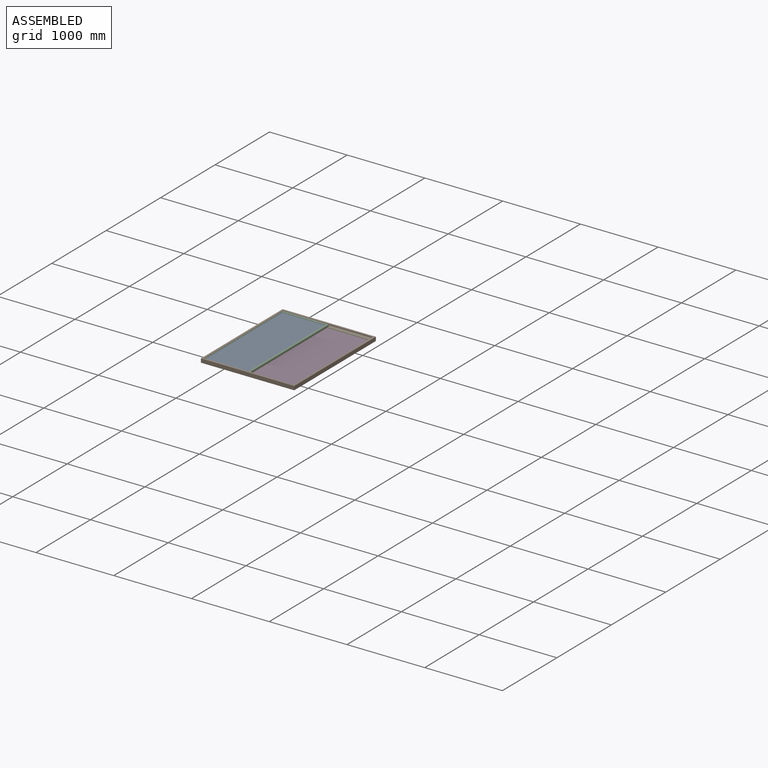
[diagram: assembled view]
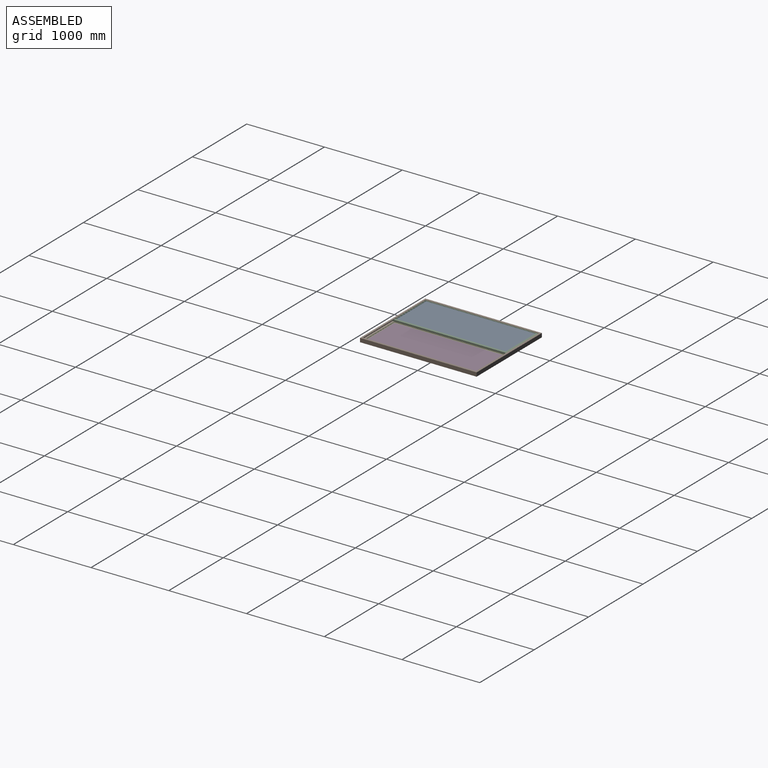
[diagram: assembled view, second angle]
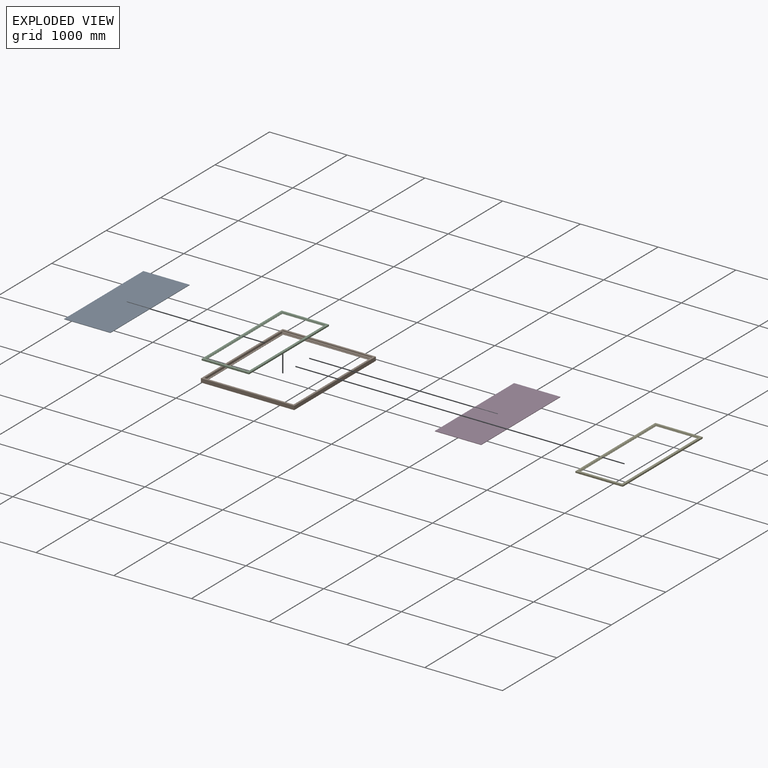
[diagram: exploded view]
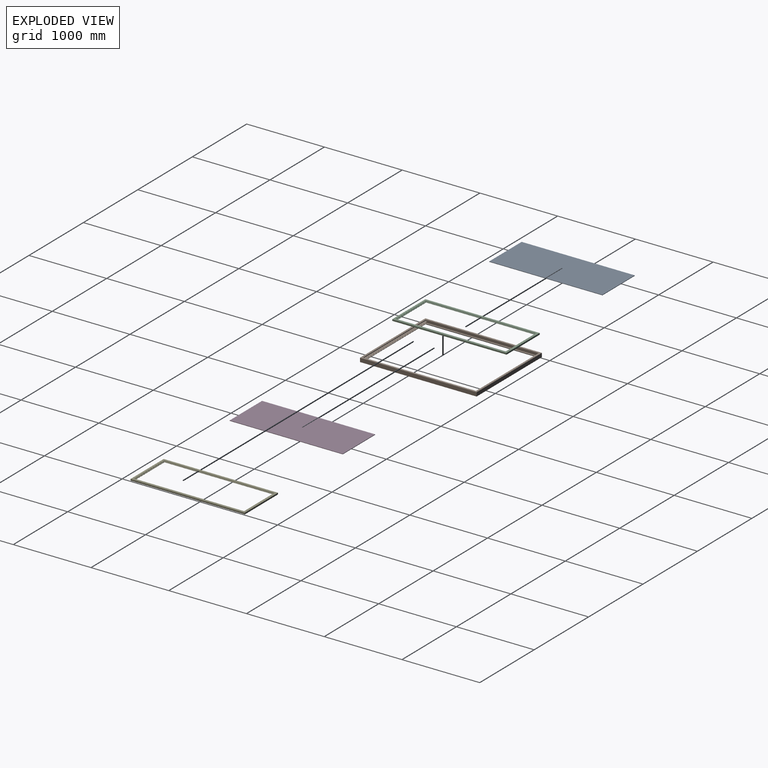
[diagram: exploded view, second angle]
ASSEMBLY  parts=5 mates=4
PART A: 6 faces, bbox 595x6x1455 mm
  f0: plane 1455x6mm, normal (-1,0,0), area 8730mm2, adj f1,f3,f4,f5
  f1: plane 595x6mm, normal (0,0,-1), area 3570mm2, adj f0,f2,f4,f5
  f2: plane 1455x6mm, normal (1,0,0), area 8730mm2, adj f1,f3,f4,f5
  f3: plane 595x6mm, normal (0,0,1), area 3570mm2, adj f0,f2,f4,f5
  f4: plane 1455x595mm, normal (0,-1,0), area 865725mm2, adj f0,f1,f2,f3
  f5: plane 1455x595mm, normal (0,1,0), area 865725mm2, adj f0,f1,f2,f3
PART B: 34 faces, bbox 1200x1500x50 mm
  f0: plane 1190x8.88mm, normal (0,1,0), area 10561.3mm2, adj f21,f22,f23,f33
  f1: plane 1190x19.25mm, normal (0,-1,0), area 22907.5mm2, adj f18,f21,f22,f25
  f2: plane 1190x20mm, normal (0,1,0), area 23800mm2, adj f17,f21,f22,f24
  f3: plane 1450x5mm, normal (-1,0,0), area 7250mm2, adj f9,f15,f16,f18
  f4: plane 1450x5mm, normal (-1,0,0), area 7250mm2, adj f6,f7,f8,f17
  f5: plane 1450x5mm, normal (1,0,0), area 7250mm2, adj f6,f7,f8,f17
  f6: plane 1150x5mm, normal (0,-1,0), area 5750mm2, adj f4,f5,f8,f17
  f7: plane 1150x5mm, normal (0,1,0), area 5750mm2, adj f4,f5,f8,f17
  f8: plane 1500x1200mm, normal (0,0,1), area 132500mm2, adj f4,f5,f6,f7,f10,f11,f12,f13
  f9: plane 1500x1200mm, normal (0,0,-1), area 132500mm2, adj f3,f10,f11,f12,f13,f14,f15,f16
  f10: plane 1500x50mm, normal (-1,0,0), area 75000mm2, adj f8,f9,f11,f13
  f11: plane 1200x50mm, normal (0,-1,0), area 60000mm2, adj f8,f9,f10,f12
  f12: plane 1500x50mm, normal (1,0,0), area 75000mm2, adj f8,f9,f11,f13
  f13: plane 1200x50mm, normal (0,1,0), area 60000mm2, adj f8,f9,f10,f12
  f14: plane 1450x5mm, normal (1,0,0), area 7250mm2, adj f9,f15,f16,f18
  f15: plane 1150x5mm, normal (0,1,0), area 5750mm2, adj f3,f9,f14,f18
  f16: plane 1150x5mm, normal (0,-1,0), area 5750mm2, adj f3,f9,f14,f18
  f17: plane 1490x1190mm, normal (0,0,-1), area 105600mm2, adj f2,f4,f5,f6,f7,f20,f21,f22
  f18: plane 1490x1190mm, normal (0,0,1), area 105600mm2, adj f1,f3,f14,f15,f16,f19,f21,f22
  f19: plane 1190x8.88mm, normal (0,1,0), area 10561.3mm2, adj f18,f21,f22,f32
  f20: plane 1190x19.25mm, normal (0,-1,0), area 22907.5mm2, adj f17,f21,f22,f26
  f21: plane 1490x40mm, normal (1,0,0), area 59548.2mm2, adj f0,f1,f2,f17,f18,f19,f20,f23
  f22: plane 1490x40mm, normal (-1,0,0), area 59548.2mm2, adj f0,f1,f2,f17,f18,f19,f20,f23
  f23: plane 1190x22.2mm, normal (0,0,-1), area 26418mm2, adj f0,f21,f22,f30
  f24: plane 1190x22.2mm, normal (0,0,1), area 26418mm2, adj f2,f21,f22,f29
  f25: plane 1190x22.2mm, normal (0,0,-1), area 26418mm2, adj f1,f21,f22,f27
  f26: plane 1190x22.2mm, normal (0,0,1), area 26418mm2, adj f20,f21,f22,f28
  f27: cylinder r=0.8mm len=1190mm, axis (-1,0,0), area 1435.9mm2, adj f21,f22,f25,f28
  f28: cylinder r=0.8mm len=1190mm, axis (1,0,0), area 1435.9mm2, adj f21,f22,f26,f27
  f29: cylinder r=0.8mm len=1190mm, axis (-1,0,0), area 962.2mm2, adj f21,f22,f24,f30
  f30: cylinder r=0.8mm len=1190mm, axis (1,0,0), area 962.2mm2, adj f21,f22,f23,f29
  f31: plane 1190x0.02mm, normal (0,1,0), area 19.9mm2, adj f21,f22,f32,f33
  f32: cylinder r=0.8mm len=1190mm, axis (-1,0,0), area 1129.5mm2, adj f19,f21,f22,f31
  f33: cylinder r=0.8mm len=1190mm, axis (-1,0,0), area 1129.5mm2, adj f0,f21,f22,f31
PART C: 24 faces, bbox 610x19x1470 mm
  f0: plane 1410x4.5mm, normal (-1,0,0), area 6345mm2, adj f3,f4,f14,f19
  f1: plane 1410x4.5mm, normal (1,0,0), area 6345mm2, adj f3,f4,f14,f19
  f2: plane 550x4.5mm, normal (0,0,-1), area 2475mm2, adj f5,f15,f17,f18
  f3: plane 550x4.5mm, normal (0,0,1), area 2475mm2, adj f0,f1,f4,f19
  f4: plane 1470x610mm, normal (0,-1,0), area 121200mm2, adj f0,f1,f3,f7,f8,f9,f10,f14
  f5: plane 1470x610mm, normal (0,1,0), area 121200mm2, adj f2,f6,f7,f8,f9,f15,f16,f17
  f6: plane 610x8.75mm, normal (0,0,-1), area 5337.5mm2, adj f5,f7,f8,f12
  f7: plane 1470x19mm, normal (-1,0,0), area 27929.5mm2, adj f4,f5,f6,f9,f10,f11,f12,f13
  f8: plane 1470x19mm, normal (1,0,0), area 27929.5mm2, adj f4,f5,f6,f9,f10,f11,f12,f13
  f9: plane 610x19mm, normal (0,0,1), area 11590mm2, adj f4,f5,f7,f8
  f10: plane 610x8.75mm, normal (0,0,-1), area 5337.5mm2, adj f4,f7,f8,f13
  f11: plane 610x0.02mm, normal (0,0,-1), area 10.2mm2, adj f7,f8,f12,f13
  f12: cylinder r=0.8mm len=610mm, axis (1,0,0), area 579mm2, adj f6,f7,f8,f11
  f13: cylinder r=0.8mm len=610mm, axis (1,0,0), area 579mm2, adj f7,f8,f10,f11
  f14: plane 550x4.5mm, normal (0,0,-1), area 2475mm2, adj f0,f1,f4,f19
  f15: plane 1410x4.5mm, normal (1,0,0), area 6345mm2, adj f2,f5,f16,f18
  f16: plane 550x4.5mm, normal (0,0,1), area 2475mm2, adj f5,f15,f17,f18
  f17: plane 1410x4.5mm, normal (-1,0,0), area 6345mm2, adj f2,f5,f16,f18
  f18: plane 1440x580mm, normal (0,-1,0), area 59700mm2, adj f2,f15,f16,f17,f20,f21,f22,f23
  f19: plane 1440x580mm, normal (0,1,0), area 59700mm2, adj f0,f1,f3,f14,f20,f21,f22,f23
  f20: plane 580x10mm, normal (0,0,1), area 5800mm2, adj f18,f19,f22,f23
  f21: plane 580x10mm, normal (0,0,-1), area 5800mm2, adj f18,f19,f22,f23
  f22: plane 1440x10mm, normal (1,0,0), area 14400mm2, adj f18,f19,f20,f21
  f23: plane 1440x10mm, normal (-1,0,0), area 14400mm2, adj f18,f19,f20,f21
PART D: same geometry as A
PART E: same geometry as C
PLACE A rot(axis=(-1,0,0),90deg) t=(32.65,423.31,595.3)mm
PLACE B rot(axis=(0.37,-0.93,0.06),0deg) t=(27.65,418.31,564.8)mm fixed
PLACE C rot(axis=(-1,0,0),90deg) t=(32.65,423.31,609.8)mm
PLACE D rot(axis=(-1,0,0),90deg) t=(612.65,423.31,568.3)mm
PLACE E rot(axis=(-1,0,0),90deg) t=(612.65,423.31,588.8)mm
MATE fastened D.f2 <-> E.f23  axis (1,0,0) through (1207.65,1878.31,574.3)mm
MATE fastened A.f2 <-> C.f23  axis (1,0,0) through (627.65,1878.31,595.3)mm
MATE slider E.f7 <-> B.f21  axis (1,0,0) through (612.65,423.31,569.8)mm
MATE fastened C.f4 <-> B.f17  axis (0,0,1) through (32.65,423.31,609.8)mm
